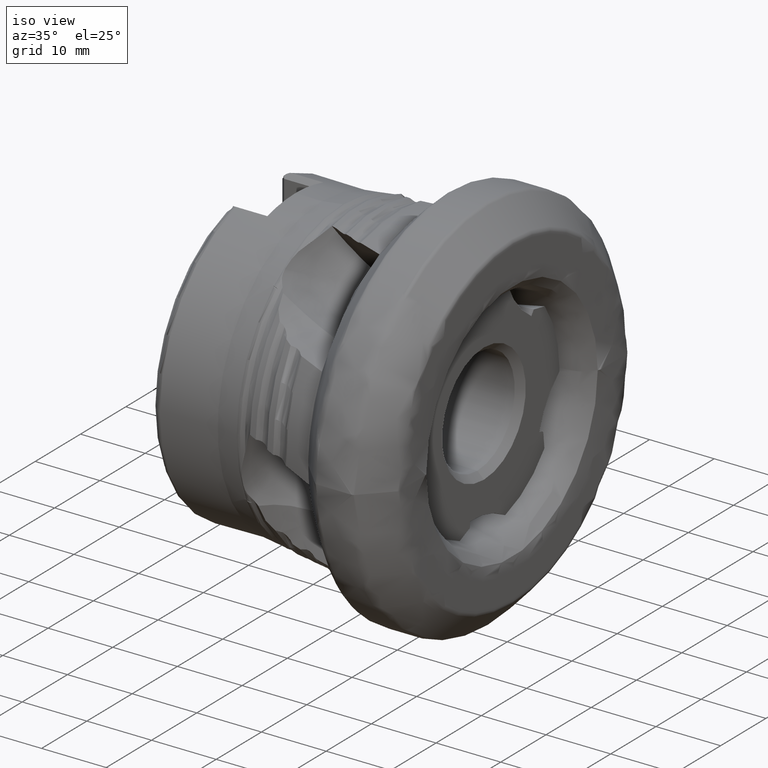
[diagram: clean part render]
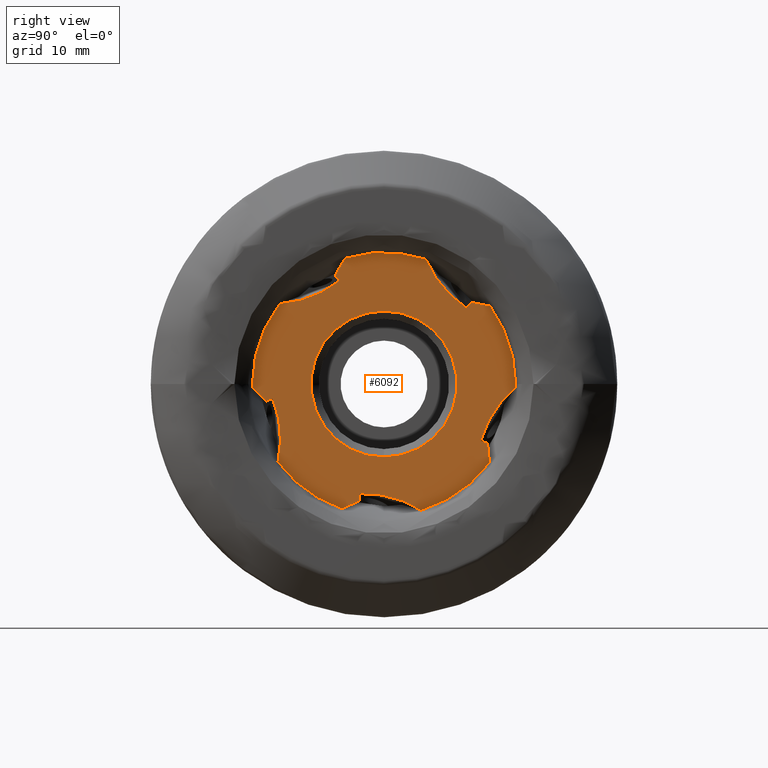
[diagram: tour spotlight — one face highlighted and labeled with its STEP entity id]
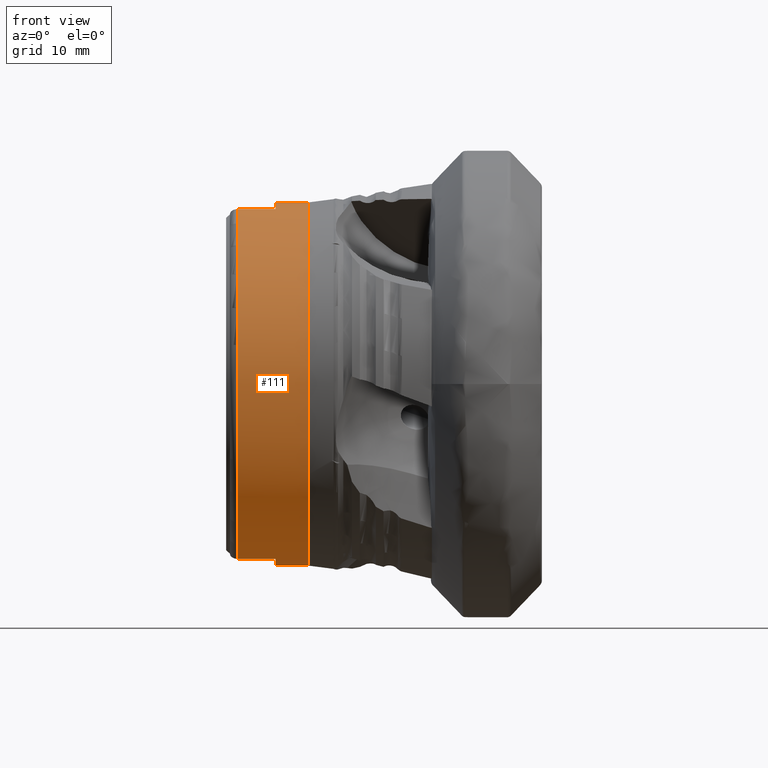
[diagram: tour spotlight — one face highlighted and labeled with its STEP entity id]
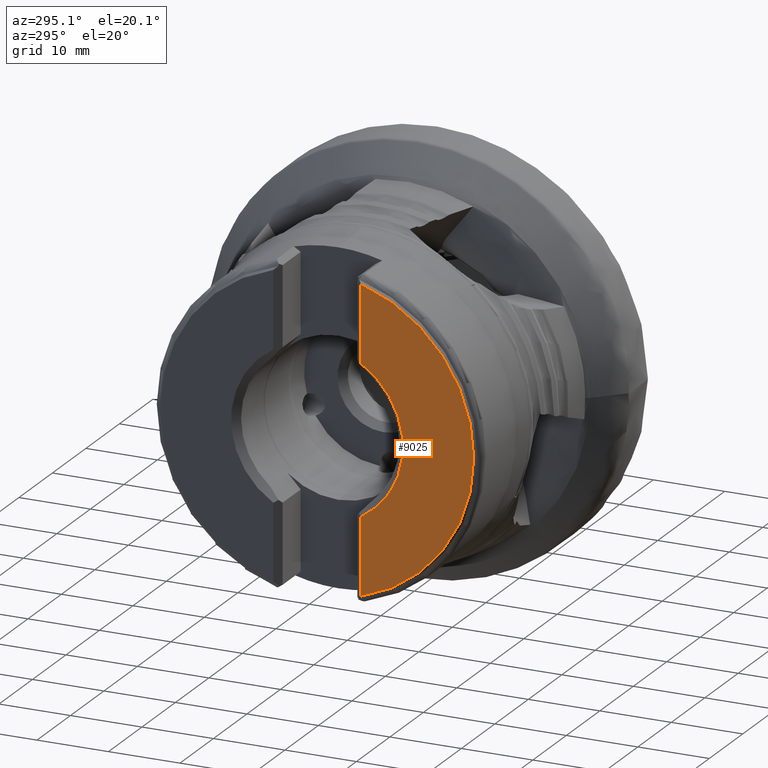
[diagram: tour spotlight — one face highlighted and labeled with its STEP entity id]
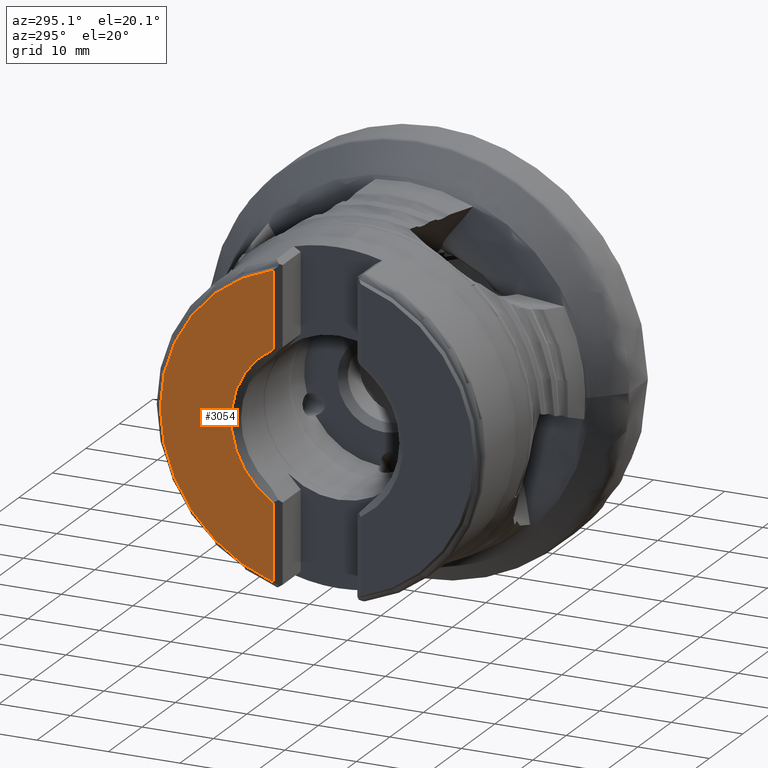
[diagram: tour spotlight — one face highlighted and labeled with its STEP entity id]
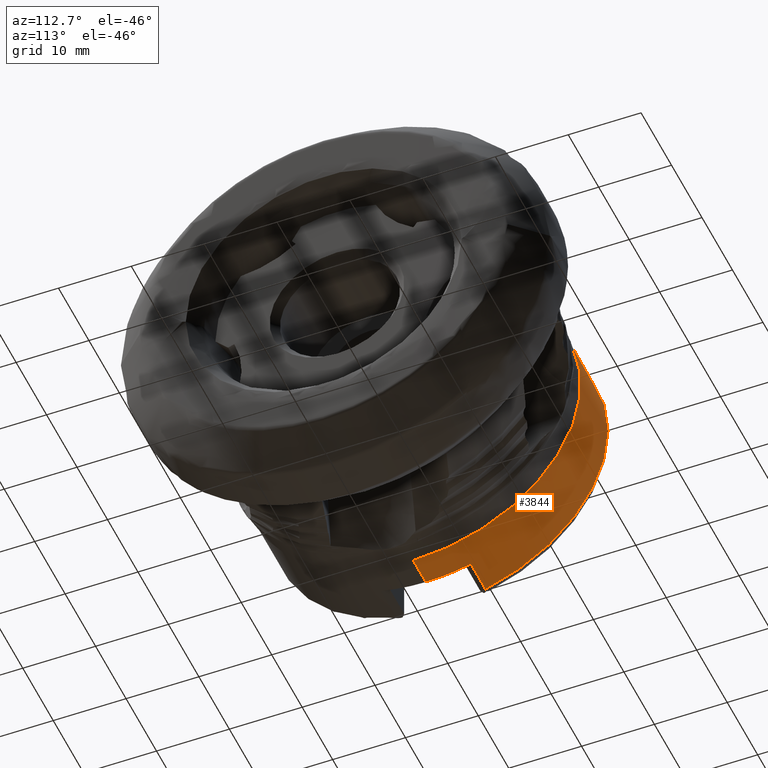
[diagram: tour spotlight — one face highlighted and labeled with its STEP entity id]
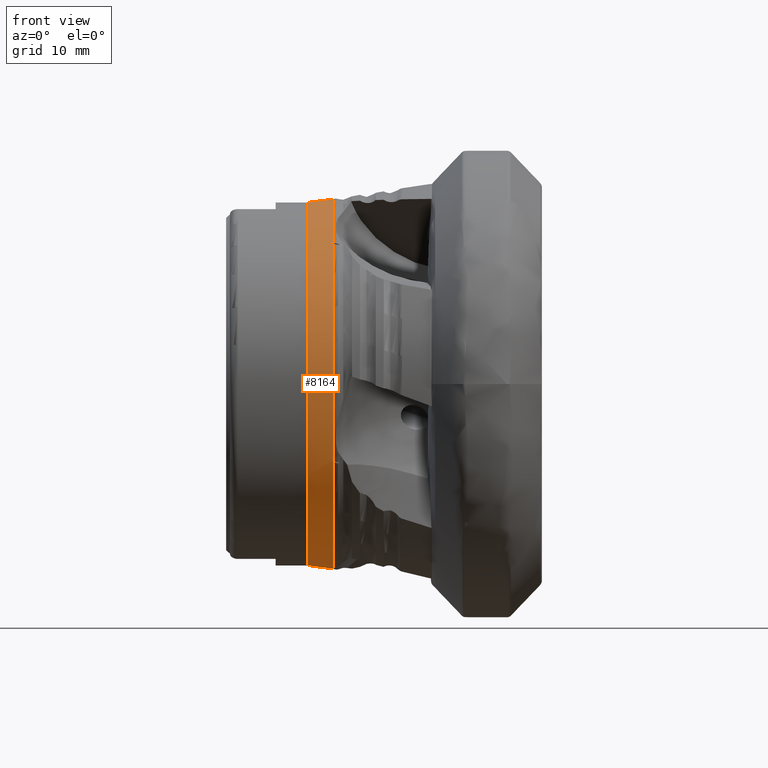
[diagram: tour spotlight — one face highlighted and labeled with its STEP entity id]
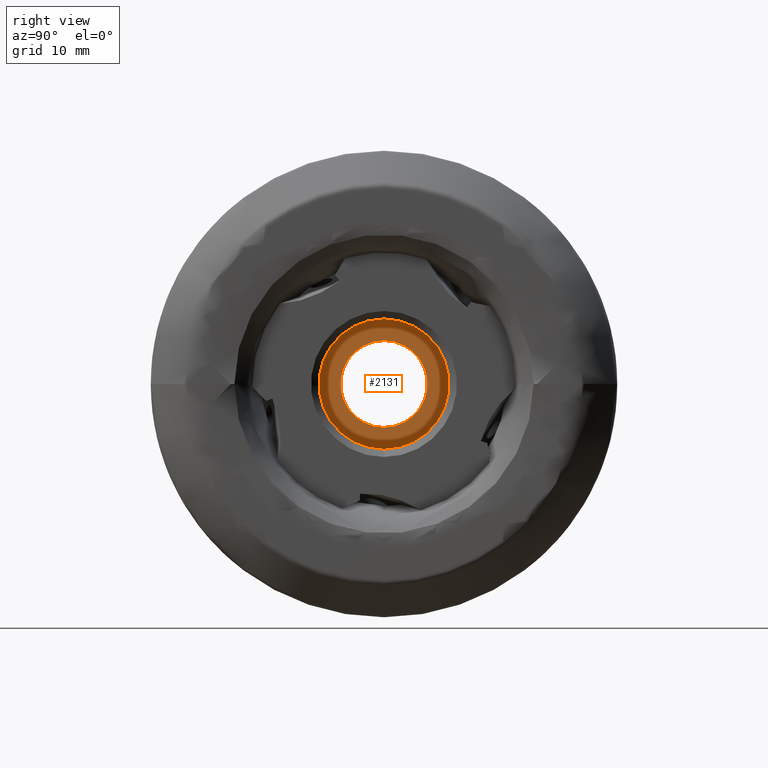
[diagram: tour spotlight — one face highlighted and labeled with its STEP entity id]
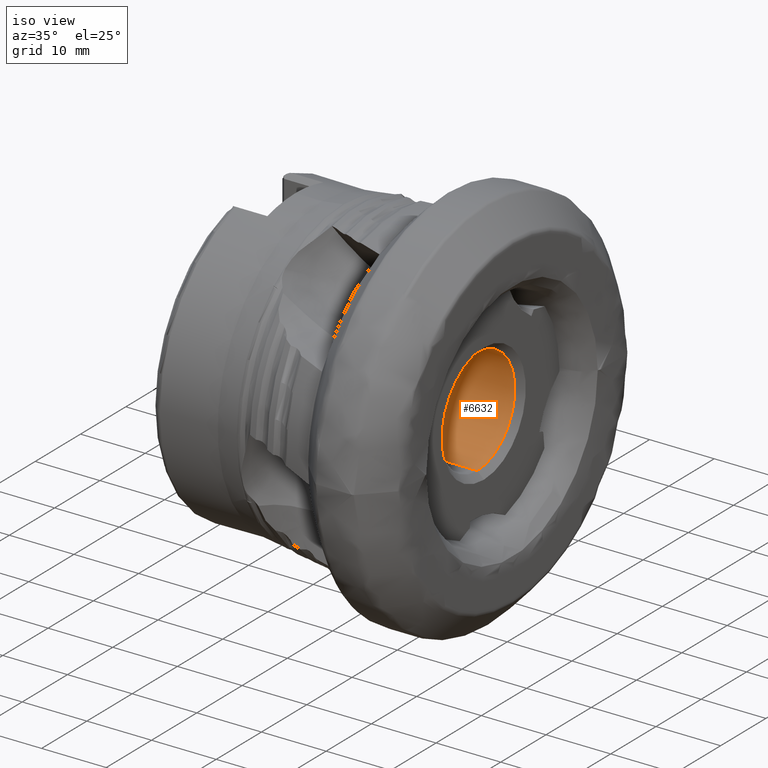
[diagram: tour spotlight — one face highlighted and labeled with its STEP entity id]
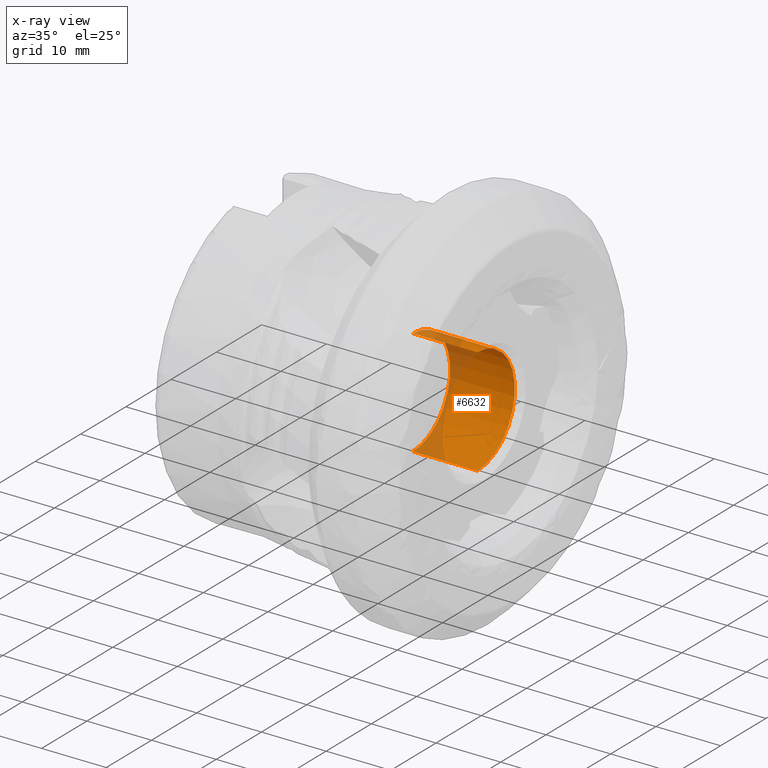
[diagram: x-ray of the same camera — body ghosted, this tour face saturated]
A machine part: a face-by-face anatomy tour. The part has 200 B-rep faces; the first image is the clean iso view, then the 8 largest visible faces are spotlighted one at a time (largest first), each with its STEP entity span.

Face 1 — right view, entity #6092. In plain terms, the highlighted planar face has unit normal (-1, 0, 0).
Definition (entity closure, byte-faithful):
#23 = CARTESIAN_POINT ( 'NONE',  ( -3.603847629320219500, -13.20117365793361400, 10.17871354887482700 ) ) ;
#57 =( BOUNDED_CURVE ( )  B_SPLINE_CURVE ( 3, ( #3706, #740, #5961, #23 ),
 .UNSPECIFIED., .F., .F. ) 
 B_SPLINE_CURVE_WITH_KNOTS ( ( 4, 4 ),
 ( 4.674356767830484000, 5.303031143446006900 ),
 .UNSPECIFIED. ) 
 CURVE ( )  GEOMETRIC_REPRESENTATION_ITEM ( )  RATIONAL_B_SPLINE_CURVE ( ( 1.000000000000000000, 0.9673343467877183500, 0.9673343467877183500, 1.000000000000000000 ) ) 
 REPRESENTATION_ITEM ( '' )  );
#124 = ORIENTED_EDGE ( 'NONE', *, *, #7868, .T. ) ;
#126 = VERTEX_POINT ( 'NONE', #3585 ) ;
#135 = VERTEX_POINT ( 'NONE', #627 ) ;
#241 = CARTESIAN_POINT ( 'NONE',  ( -3.603847629320219500, -3.079178627662221100, -13.88553706503180900 ) ) ;
#288 = CARTESIAN_POINT ( 'NONE',  ( -3.603847629320219500, 0.0000000000000000000, 0.0000000000000000000 ) ) ;
#301 = LINE ( 'NONE', #8842, #7704 ) ;
#356 = VERTEX_POINT ( 'NONE', #6983 ) ;
#368 = ORIENTED_EDGE ( 'NONE', *, *, #4416, .T. ) ;
#399 = LINE ( 'NONE', #3572, #6129 ) ;
#444 = CARTESIAN_POINT ( 'NONE',  ( -3.603847629320210600, -1.931042785923919600E-015, 0.0000000000000000000 ) ) ;
#626 = CARTESIAN_POINT ( 'NONE',  ( -3.603847629320210600, -1.931042785923919600E-015, 0.0000000000000000000 ) ) ;
#627 = CARTESIAN_POINT ( 'NONE',  ( -3.603847629320219500, -13.42314404921555100, -9.884148890570905600 ) ) ;
#704 = CARTESIAN_POINT ( 'NONE',  ( -3.603847629320214200, -6.199612795554506000, 13.77164654308549700 ) ) ;
#740 = CARTESIAN_POINT ( 'NONE',  ( -3.603847629320220400, -7.862771394274206600, 11.32564514017942500 ) ) ;
#875 = DIRECTION ( 'NONE',  ( 0.0000000000000000000, -0.5735764363510527100, -0.8191520442889871400 ) ) ;
#898 = VERTEX_POINT ( 'NONE', #6943 ) ;
#907 = CARTESIAN_POINT ( 'NONE',  ( -3.603847629320221300, -3.079178627662218800, -14.78553706503182900 ) ) ;
#1027 = EDGE_CURVE ( 'NONE', #8783, #5476, #8638, .T. ) ;
#1038 = CARTESIAN_POINT ( 'NONE',  ( -3.603847629320219500, -13.20117365793361400, 10.17871354887482700 ) ) ;
#1072 = DIRECTION ( 'NONE',  ( 0.0000000000000000000, -0.9144532970492326200, -0.4046914472975527400 ) ) ;
#1096 = CIRCLE ( 'NONE', #1190, 16.66964893021688000 ) ;
#1117 = CARTESIAN_POINT ( 'NONE',  ( -3.603847629320219500, -14.10127783121799200, -1.855651942640159200 ) ) ;
#1138 = CARTESIAN_POINT ( 'NONE',  ( -3.603847629320219500, 8.575731440277589700, -6.564870131852001300 ) ) ;
#1190 = AXIS2_PLACEMENT_3D ( 'NONE', #1514, #5980, #6772 ) ;
#1191 = CARTESIAN_POINT ( 'NONE',  ( -3.603847629320219500, -13.05418237155574700, -4.436410085874613600 ) ) ;
#1261 = AXIS2_PLACEMENT_3D ( 'NONE', #2866, #8123, #5073 ) ;
#1313 = ORIENTED_EDGE ( 'NONE', *, *, #4016, .T. ) ;
#1408 = CARTESIAN_POINT ( 'NONE',  ( -3.603847629320220400, 12.25441198329254500, -7.219339827793121800 ) ) ;
#1411 = DIRECTION ( 'NONE',  ( 0.0000000000000000000, 0.9396926207859094300, 0.3420201433256660500 ) ) ;
#1422 = DIRECTION ( 'NONE',  ( 0.0000000000000000000, 0.0000000000000000000, 1.000000000000000000 ) ) ;
#1514 = CARTESIAN_POINT ( 'NONE',  ( -3.603847629320210600, -1.931042785923919600E-015, 0.0000000000000000000 ) ) ;
#1516 = AXIS2_PLACEMENT_3D ( 'NONE', #7758, #2539, #2469 ) ;
#1559 =( BOUNDED_CURVE ( )  B_SPLINE_CURVE ( 3, ( #9189, #1857, #9311, #6951 ),
 .UNSPECIFIED., .F., .T. ) 
 B_SPLINE_CURVE_WITH_KNOTS ( ( 4, 4 ),
 ( 4.674356767830484000, 5.303031143446003300 ),
 .UNSPECIFIED. ) 
 CURVE ( )  GEOMETRIC_REPRESENTATION_ITEM ( )  RATIONAL_B_SPLINE_CURVE ( ( 1.000000000000000000, 0.9673343467877186800, 0.9673343467877186800, 1.000000000000000000 ) ) 
 REPRESENTATION_ITEM ( '' )  );
#1575 = VERTEX_POINT ( 'NONE', #3997 ) ;
#1682 = VECTOR ( 'NONE', #3748, 1000.000000000000200 ) ;
#1714 = VECTOR ( 'NONE', #875, 1000.000000000000000 ) ;
#1857 = CARTESIAN_POINT ( 'NONE',  ( -3.603847629320219100, 13.01816286694839100, -4.541018322963773300 ) ) ;
#1924 = EDGE_CURVE ( 'NONE', #4188, #3247, #301, .T. ) ;
#1989 = ORIENTED_EDGE ( 'NONE', *, *, #5733, .T. ) ;
#2023 = VERTEX_POINT ( 'NONE', #5234 ) ;
#2028 = LINE ( 'NONE', #6804, #4357 ) ;
#2204 = PLANE ( 'NONE',  #6308 ) ;
#2240 = LINE ( 'NONE', #1138, #5496 ) ;
#2412 = CARTESIAN_POINT ( 'NONE',  ( -3.603847629320212900, 16.66964893021687600, 0.0000000000000000000 ) ) ;
#2425 = EDGE_CURVE ( 'NONE', #9702, #2023, #4505, .T. ) ;
#2435 = ORIENTED_EDGE ( 'NONE', *, *, #8409, .T. ) ;
#2469 = DIRECTION ( 'NONE',  ( -1.300809845515323100E-016, 1.000000000000000000, 0.0000000000000000000 ) ) ;
#2481 = LINE ( 'NONE', #3212, #4100 ) ;
#2509 = CARTESIAN_POINT ( 'NONE',  ( -3.603847629320210600, -1.931042785923919600E-015, 0.0000000000000000000 ) ) ;
#2539 = DIRECTION ( 'NONE',  ( 1.000000000000000000, 1.209405225939784600E-016, -0.0000000000000000000 ) ) ;
#2567 = CARTESIAN_POINT ( 'NONE',  ( -3.603847629320209700, -16.66540738606921200, -0.3760214262919069900 ) ) ;
#2588 = EDGE_CURVE ( 'NONE', #6115, #4790, #1096, .T. ) ;
#2760 = DIRECTION ( 'NONE',  ( 0.0000000000000000000, 0.5877852522924687000, -0.8090169943749506700 ) ) ;
#2769 = CARTESIAN_POINT ( 'NONE',  ( -3.603847629320211100, -5.346560463220106000, -15.78896724519411000 ) ) ;
#2779 = DIRECTION ( 'NONE',  ( -1.300809845515323100E-016, 1.000000000000000000, 0.0000000000000000000 ) ) ;
#2866 = CARTESIAN_POINT ( 'NONE',  ( -3.603847629320210600, -1.931042785923919600E-015, 0.0000000000000000000 ) ) ;
#3106 = EDGE_CURVE ( 'NONE', #898, #6115, #5421, .T. ) ;
#3109 = EDGE_CURVE ( 'NONE', #4188, #898, #9090, .T. ) ;
#3132 = ORIENTED_EDGE ( 'NONE', *, *, #4191, .T. ) ;
#3187 = CARTESIAN_POINT ( 'NONE',  ( -3.603847629320219500, 0.0000000000000000000, 0.0000000000000000000 ) ) ;
#3212 = CARTESIAN_POINT ( 'NONE',  ( -3.603847629320219500, 12.39448456622863000, -0.5365304495966382000 ) ) ;
#3218 = DIRECTION ( 'NONE',  ( 0.0000000000000000000, 0.0000000000000000000, -1.000000000000000000 ) ) ;
#3224 = CARTESIAN_POINT ( 'NONE',  ( -3.603847629320219100, 8.148739888933487700, 11.12166579530201800 ) ) ;
#3247 = VERTEX_POINT ( 'NONE', #6379 ) ;
#3318 = LINE ( 'NONE', #5527, #7808 ) ;
#3336 = ORIENTED_EDGE ( 'NONE', *, *, #3109, .T. ) ;
#3340 = CARTESIAN_POINT ( 'NONE',  ( -3.603847629320219500, -13.42314404921555100, -9.884148890570905600 ) ) ;
#3405 = ORIENTED_EDGE ( 'NONE', *, *, #1924, .F. ) ;
#3524 = DIRECTION ( 'NONE',  ( 0.0000000000000000000, 0.9811977658473635100, -0.1930050369709102300 ) ) ;
#3572 = CARTESIAN_POINT ( 'NONE',  ( -3.603847629320219500, -6.179278906009690400, 13.80668457613335000 ) ) ;
#3585 = CARTESIAN_POINT ( 'NONE',  ( -3.603847629320219500, 16.66287154630135300, -0.4752970528291307600 ) ) ;
#3636 = LINE ( 'NONE', #8148, #1682 ) ;
#3706 = CARTESIAN_POINT ( 'NONE',  ( -3.603847629320219500, -5.670606068491271600, 13.04353124814802600 ) ) ;
#3748 = DIRECTION ( 'NONE',  ( 0.0000000000000000000, -0.9510565162951499800, 0.3090169943749582800 ) ) ;
#3843 =( BOUNDED_CURVE ( )  B_SPLINE_CURVE ( 3, ( #241, #8519, #5464, #5531 ),
 .UNSPECIFIED., .F., .T. ) 
 B_SPLINE_CURVE_WITH_KNOTS ( ( 4, 4 ),
 ( 4.674356767830484000, 5.303031143446002500 ),
 .UNSPECIFIED. ) 
 CURVE ( )  GEOMETRIC_REPRESENTATION_ITEM ( )  RATIONAL_B_SPLINE_CURVE ( ( 1.000000000000000000, 0.9673343467877187900, 0.9673343467877187900, 1.000000000000000000 ) ) 
 REPRESENTATION_ITEM ( '' )  );
#3918 = CARTESIAN_POINT ( 'NONE',  ( -3.603847629320210600, -1.931042785923919600E-015, 0.0000000000000000000 ) ) ;
#3976 = DIRECTION ( 'NONE',  ( 1.000000000000000000, 1.209405225939784600E-016, -0.0000000000000000000 ) ) ;
#3997 = CARTESIAN_POINT ( 'NONE',  ( -3.603847629320219500, 0.0000000000000000000, -9.250000000000005300 ) ) ;
#4016 = EDGE_CURVE ( 'NONE', #135, #8274, #8400, .T. ) ;
#4100 = VECTOR ( 'NONE', #6919, 1000.000000000000000 ) ;
#4179 = ORIENTED_EDGE ( 'NONE', *, *, #9413, .F. ) ;
#4188 = VERTEX_POINT ( 'NONE', #8937 ) ;
#4191 = EDGE_CURVE ( 'NONE', #9278, #126, #1559, .T. ) ;
#4256 = VECTOR ( 'NONE', #6776, 1000.000000000000000 ) ;
#4266 = EDGE_CURVE ( 'NONE', #9702, #8274, #3318, .T. ) ;
#4357 = VECTOR ( 'NONE', #5357, 1000.000000000000100 ) ;
#4416 = EDGE_CURVE ( 'NONE', #5593, #6081, #5436, .T. ) ;
#4484 = ORIENTED_EDGE ( 'NONE', *, *, #4266, .F. ) ;
#4494 = ORIENTED_EDGE ( 'NONE', *, *, #2425, .T. ) ;
#4505 = LINE ( 'NONE', #8345, #4256 ) ;
#4518 = CARTESIAN_POINT ( 'NONE',  ( -3.603847629320219500, 13.36402213952420600, -9.963940370705326900 ) ) ;
#4595 = FACE_BOUND ( 'NONE', #6228, .T. ) ;
#4673 = CARTESIAN_POINT ( 'NONE',  ( -3.603847629320219500, 8.316321590490595400, 6.508553991342737700 ) ) ;
#4689 = CARTESIAN_POINT ( 'NONE',  ( -3.603847629320217700, -14.94700118992532500, -2.163470071633263500 ) ) ;
#4710 = EDGE_CURVE ( 'NONE', #5488, #4790, #399, .T. ) ;
#4749 = DIRECTION ( 'NONE',  ( 1.000000000000000000, 1.209405225939784600E-016, -0.0000000000000000000 ) ) ;
#4790 = VERTEX_POINT ( 'NONE', #6054 ) ;
#4811 = EDGE_CURVE ( 'NONE', #5956, #8783, #57, .T. ) ;
#4917 = DIRECTION ( 'NONE',  ( 0.0000000000000000000, 0.0000000000000000000, -1.000000000000000000 ) ) ;
#4947 = AXIS2_PLACEMENT_3D ( 'NONE', #444, #5676, #2779 ) ;
#5051 = VERTEX_POINT ( 'NONE', #2567 ) ;
#5073 = DIRECTION ( 'NONE',  ( -1.300809845515323100E-016, 1.000000000000000000, 0.0000000000000000000 ) ) ;
#5151 = ORIENTED_EDGE ( 'NONE', *, *, #4811, .T. ) ;
#5234 = CARTESIAN_POINT ( 'NONE',  ( -3.603847629320219500, -3.079178627662221100, -13.88553706503180900 ) ) ;
#5284 = LINE ( 'NONE', #5880, #7882 ) ;
#5357 = DIRECTION ( 'NONE',  ( 0.0000000000000000000, -0.6930470144420863800, 0.7208923884831288700 ) ) ;
#5421 =( BOUNDED_CURVE ( )  B_SPLINE_CURVE ( 3, ( #7646, #3224, #6162, #7737 ),
 .UNSPECIFIED., .F., .F. ) 
 B_SPLINE_CURVE_WITH_KNOTS ( ( 4, 4 ),
 ( 4.674356767830484000, 5.303031143445988200 ),
 .UNSPECIFIED. ) 
 CURVE ( )  GEOMETRIC_REPRESENTATION_ITEM ( )  RATIONAL_B_SPLINE_CURVE ( ( 1.000000000000000000, 0.9673343467877201200, 0.9673343467877201200, 1.000000000000000000 ) ) 
 REPRESENTATION_ITEM ( '' )  );
#5436 = CIRCLE ( 'NONE', #5784, 16.66964893021688000 ) ;
#5464 = CARTESIAN_POINT ( 'NONE',  ( -3.603847629320219500, 2.383684829795774500, -14.51088628771241300 ) ) ;
#5476 = VERTEX_POINT ( 'NONE', #6487 ) ;
#5488 = VERTEX_POINT ( 'NONE', #704 ) ;
#5493 = AXIS2_PLACEMENT_3D ( 'NONE', #3187, #8426, #3218 ) ;
#5496 = VECTOR ( 'NONE', #2760, 1000.000000000000100 ) ;
#5527 = CARTESIAN_POINT ( 'NONE',  ( -3.603847629320219500, 19.69458546111797400, -4.707004263804150500 ) ) ;
#5531 = CARTESIAN_POINT ( 'NONE',  ( -3.603847629320219500, 4.697076123625021400, -15.99420743099946800 ) ) ;
#5593 = VERTEX_POINT ( 'NONE', #7490 ) ;
#5594 = ORIENTED_EDGE ( 'NONE', *, *, #7823, .T. ) ;
#5636 = CIRCLE ( 'NONE', #7513, 16.66964893021688000 ) ;
#5659 = ORIENTED_EDGE ( 'NONE', *, *, #1027, .T. ) ;
#5667 =( BOUNDED_CURVE ( )  B_SPLINE_CURVE ( 3, ( #1117, #1191, #9379, #3340 ),
 .UNSPECIFIED., .F., .T. ) 
 B_SPLINE_CURVE_WITH_KNOTS ( ( 4, 4 ),
 ( 4.674356767830484000, 5.303031143445995400 ),
 .UNSPECIFIED. ) 
 CURVE ( )  GEOMETRIC_REPRESENTATION_ITEM ( )  RATIONAL_B_SPLINE_CURVE ( ( 1.000000000000000000, 0.9673343467877195700, 0.9673343467877195700, 1.000000000000000000 ) ) 
 REPRESENTATION_ITEM ( '' )  );
#5676 = DIRECTION ( 'NONE',  ( 1.000000000000000000, 1.209405225939784600E-016, -0.0000000000000000000 ) ) ;
#5733 = EDGE_CURVE ( 'NONE', #5476, #5051, #9654, .T. ) ;
#5782 = EDGE_CURVE ( 'NONE', #7532, #3247, #7681, .T. ) ;
#5784 = AXIS2_PLACEMENT_3D ( 'NONE', #626, #7346, #8115 ) ;
#5828 = VERTEX_POINT ( 'NONE', #8449 ) ;
#5871 = ORIENTED_EDGE ( 'NONE', *, *, #4710, .F. ) ;
#5880 = CARTESIAN_POINT ( 'NONE',  ( -3.603847629320219500, 14.49820473943661300, 8.553708428493074200 ) ) ;
#5956 = VERTEX_POINT ( 'NONE', #7349 ) ;
#5961 = CARTESIAN_POINT ( 'NONE',  ( -3.603847629320220400, -10.45772649414893800, 10.33845882113452900 ) ) ;
#5980 = DIRECTION ( 'NONE',  ( 1.000000000000000000, 1.209405225939784600E-016, -0.0000000000000000000 ) ) ;
#5999 = ORIENTED_EDGE ( 'NONE', *, *, #7178, .T. ) ;
#6054 = CARTESIAN_POINT ( 'NONE',  ( -3.603847629320209700, -4.955063819455667800, 15.91617221576225000 ) ) ;
#6081 = VERTEX_POINT ( 'NONE', #4518 ) ;
#6092 = ADVANCED_FACE ( 'NONE', ( #4595, #8497 ), #2204, .F. ) ;
#6115 = VERTEX_POINT ( 'NONE', #7388 ) ;
#6129 = VECTOR ( 'NONE', #8852, 1000.000000000000100 ) ;
#6162 = CARTESIAN_POINT ( 'NONE',  ( -3.603847629320219100, 6.370502143933663300, 13.25384761708287600 ) ) ;
#6228 = EDGE_LOOP ( 'NONE', ( #4179, #7384 ) ) ;
#6255 = DIRECTION ( 'NONE',  ( 1.000000000000000000, -0.0000000000000000000, -0.0000000000000000000 ) ) ;
#6308 = AXIS2_PLACEMENT_3D ( 'NONE', #8218, #9023, #1422 ) ;
#6379 = CARTESIAN_POINT ( 'NONE',  ( -3.603847629320211100, 13.43582549952335700, 9.866903698883389100 ) ) ;
#6487 = CARTESIAN_POINT ( 'NONE',  ( -3.603847629320208900, -16.66964893021688400, 2.041443220529976200E-015 ) ) ;
#6772 = DIRECTION ( 'NONE',  ( -1.300809845515323100E-016, 1.000000000000000000, 0.0000000000000000000 ) ) ;
#6776 = DIRECTION ( 'NONE',  ( 0.0000000000000000000, 5.278916510769800200E-017, 1.000000000000000000 ) ) ;
#6804 = CARTESIAN_POINT ( 'NONE',  ( -3.603847629320219500, -0.3895881988865493300, -17.30577355546453700 ) ) ;
#6919 = DIRECTION ( 'NONE',  ( 0.0000000000000000000, 0.1023028286908281700, -0.9947533016993988000 ) ) ;
#6943 = CARTESIAN_POINT ( 'NONE',  ( -3.603847629320219500, 10.48673233416186800, 9.608221768728487400 ) ) ;
#6951 = CARTESIAN_POINT ( 'NONE',  ( -3.603847629320219500, 16.66287154630135300, -0.4752970528291307600 ) ) ;
#6954 = EDGE_CURVE ( 'NONE', #8370, #5051, #2028, .T. ) ;
#6983 = CARTESIAN_POINT ( 'NONE',  ( -3.603847629320219500, 1.132798289211302300E-015, 9.250000000000005300 ) ) ;
#7154 = AXIS2_PLACEMENT_3D ( 'NONE', #2509, #4749, #7662 ) ;
#7178 = EDGE_CURVE ( 'NONE', #126, #7532, #5636, .T. ) ;
#7258 = ORIENTED_EDGE ( 'NONE', *, *, #3106, .T. ) ;
#7272 = ORIENTED_EDGE ( 'NONE', *, *, #5782, .T. ) ;
#7299 = EDGE_CURVE ( 'NONE', #8367, #135, #5667, .T. ) ;
#7346 = DIRECTION ( 'NONE',  ( 1.000000000000000000, 1.209405225939784600E-016, -0.0000000000000000000 ) ) ;
#7349 = CARTESIAN_POINT ( 'NONE',  ( -3.603847629320219500, -5.670606068491271600, 13.04353124814802600 ) ) ;
#7379 = ORIENTED_EDGE ( 'NONE', *, *, #8465, .T. ) ;
#7384 = ORIENTED_EDGE ( 'NONE', *, *, #8140, .F. ) ;
#7388 = CARTESIAN_POINT ( 'NONE',  ( -3.603847629320219500, 5.326280991683840500, 15.79581989814361800 ) ) ;
#7490 = CARTESIAN_POINT ( 'NONE',  ( -3.603847629320219500, 4.697076123625021400, -15.99420743099946800 ) ) ;
#7513 = AXIS2_PLACEMENT_3D ( 'NONE', #3918, #3976, #9231 ) ;
#7532 = VERTEX_POINT ( 'NONE', #2412 ) ;
#7646 = CARTESIAN_POINT ( 'NONE',  ( -3.603847629320219500, 10.48673233416186800, 9.608221768728487400 ) ) ;
#7660 = EDGE_CURVE ( 'NONE', #5828, #6081, #2481, .T. ) ;
#7662 = DIRECTION ( 'NONE',  ( -1.300809845515323100E-016, 1.000000000000000000, 0.0000000000000000000 ) ) ;
#7681 = CIRCLE ( 'NONE', #7154, 16.66964893021688000 ) ;
#7704 = VECTOR ( 'NONE', #3524, 1000.000000000000000 ) ;
#7737 = CARTESIAN_POINT ( 'NONE',  ( -3.603847629320219500, 5.326280991683840500, 15.79581989814361800 ) ) ;
#7758 = CARTESIAN_POINT ( 'NONE',  ( -3.603847629320210600, -1.931042785923919600E-015, 0.0000000000000000000 ) ) ;
#7808 = VECTOR ( 'NONE', #1072, 999.9999999999998900 ) ;
#7823 = EDGE_CURVE ( 'NONE', #5828, #9278, #3636, .T. ) ;
#7868 = EDGE_CURVE ( 'NONE', #8370, #8367, #5284, .T. ) ;
#7882 = VECTOR ( 'NONE', #1411, 1000.000000000000000 ) ;
#8115 = DIRECTION ( 'NONE',  ( -1.300809845515323100E-016, 1.000000000000000000, 0.0000000000000000000 ) ) ;
#8123 = DIRECTION ( 'NONE',  ( 1.000000000000000000, 1.209405225939784600E-016, -0.0000000000000000000 ) ) ;
#8140 = EDGE_CURVE ( 'NONE', #356, #1575, #9276, .T. ) ;
#8148 = CARTESIAN_POINT ( 'NONE',  ( -3.603847629320219500, 14.97823287355328700, -8.104362884049518100 ) ) ;
#8218 = CARTESIAN_POINT ( 'NONE',  ( -3.603847629320219500, 17.61149999999999900, 0.0000000000000000000 ) ) ;
#8253 = EDGE_LOOP ( 'NONE', ( #7258, #8486, #5871, #7379, #5151, #5659, #1989, #8336, #124, #9059, #1313, #4484, #4494, #2435, #368, #8816, #5594, #3132, #5999, #7272, #3405, #3336 ) ) ;
#8274 = VERTEX_POINT ( 'NONE', #2769 ) ;
#8336 = ORIENTED_EDGE ( 'NONE', *, *, #6954, .F. ) ;
#8345 = CARTESIAN_POINT ( 'NONE',  ( -3.603847629320219500, -3.079178627662222800, 1.092243650265979200E-015 ) ) ;
#8367 = VERTEX_POINT ( 'NONE', #8448 ) ;
#8370 = VERTEX_POINT ( 'NONE', #4689 ) ;
#8400 = CIRCLE ( 'NONE', #1261, 16.66964893021688000 ) ;
#8409 = EDGE_CURVE ( 'NONE', #2023, #5593, #3843, .T. ) ;
#8426 = DIRECTION ( 'NONE',  ( 1.000000000000000000, -0.0000000000000000000, -0.0000000000000000000 ) ) ;
#8448 = CARTESIAN_POINT ( 'NONE',  ( -3.603847629320219500, -14.10127783121799200, -1.855651942640159200 ) ) ;
#8449 = CARTESIAN_POINT ( 'NONE',  ( -3.603847629320217700, 13.11036284795820200, -7.497455122730591400 ) ) ;
#8465 = EDGE_CURVE ( 'NONE', #5488, #5956, #2240, .T. ) ;
#8486 = ORIENTED_EDGE ( 'NONE', *, *, #2588, .T. ) ;
#8497 = FACE_OUTER_BOUND ( 'NONE', #8253, .T. ) ;
#8519 = CARTESIAN_POINT ( 'NONE',  ( -3.603847629320219500, -0.2959315052422912800, -13.78426045836669900 ) ) ;
#8638 = CIRCLE ( 'NONE', #4947, 16.66964893021688000 ) ;
#8783 = VERTEX_POINT ( 'NONE', #1038 ) ;
#8816 = ORIENTED_EDGE ( 'NONE', *, *, #7660, .F. ) ;
#8842 = CARTESIAN_POINT ( 'NONE',  ( -3.603847629320219500, 19.32450803261168600, 8.708579220813319900 ) ) ;
#8852 = DIRECTION ( 'NONE',  ( 0.0000000000000000000, 0.5019365934246378100, 0.8649044202576777800 ) ) ;
#8937 = CARTESIAN_POINT ( 'NONE',  ( -3.603847629320217700, 11.00295112687782900, 10.34545860858859400 ) ) ;
#9023 = DIRECTION ( 'NONE',  ( -1.000000000000000000, 0.0000000000000000000, 0.0000000000000000000 ) ) ;
#9059 = ORIENTED_EDGE ( 'NONE', *, *, #7299, .T. ) ;
#9090 = LINE ( 'NONE', #4673, #1714 ) ;
#9148 = CIRCLE ( 'NONE', #5493, 9.250000000000005300 ) ;
#9189 = CARTESIAN_POINT ( 'NONE',  ( -3.603847629320220400, 12.25441198329254500, -7.219339827793121800 ) ) ;
#9231 = DIRECTION ( 'NONE',  ( -1.300809845515323100E-016, 1.000000000000000000, 0.0000000000000000000 ) ) ;
#9276 = CIRCLE ( 'NONE', #9642, 9.250000000000005300 ) ;
#9278 = VERTEX_POINT ( 'NONE', #1408 ) ;
#9311 = CARTESIAN_POINT ( 'NONE',  ( -3.603847629320219100, 14.53727208278751000, -2.217091476174513500 ) ) ;
#9379 = CARTESIAN_POINT ( 'NONE',  ( -3.603847629320219500, -12.82050453849683400, -7.202946452744186000 ) ) ;
#9413 = EDGE_CURVE ( 'NONE', #1575, #356, #9148, .T. ) ;
#9642 = AXIS2_PLACEMENT_3D ( 'NONE', #288, #6255, #4917 ) ;
#9654 = CIRCLE ( 'NONE', #1516, 16.66964893021688000 ) ;
#9702 = VERTEX_POINT ( 'NONE', #907 ) ;

Face 2 — front view, entity #111. In plain terms, the highlighted cylindrical surface (partial cylindrical patch) has radius 23 mm, axis along (1, -0, -0).
Definition (entity closure, byte-faithful):
#8 = VECTOR ( 'NONE', #7657, 1000.000000000000000 ) ;
#88 = ORIENTED_EDGE ( 'NONE', *, *, #8633, .T. ) ;
#111 = ADVANCED_FACE ( 'NONE', ( #889 ), #3335, .T. ) ;
#180 = DIRECTION ( 'NONE',  ( 1.000000000000000000, -0.0000000000000000000, -0.0000000000000000000 ) ) ;
#277 = DIRECTION ( 'NONE',  ( 0.0000000000000000000, 0.0000000000000000000, -1.000000000000000000 ) ) ;
#365 = VECTOR ( 'NONE', #180, 1000.000000000000000 ) ;
#537 = CARTESIAN_POINT ( 'NONE',  ( -32.77900000000001800, 2.816687638038911600E-015, 22.99999999999999300 ) ) ;
#648 = VECTOR ( 'NONE', #8255, 1000.000000000000000 ) ;
#847 = ORIENTED_EDGE ( 'NONE', *, *, #8063, .F. ) ;
#889 = FACE_OUTER_BOUND ( 'NONE', #2335, .T. ) ;
#952 = LINE ( 'NONE', #9125, #365 ) ;
#965 = VERTEX_POINT ( 'NONE', #2679 ) ;
#1048 = CARTESIAN_POINT ( 'NONE',  ( 0.0000000000000000000, 0.0000000000000000000, 0.0000000000000000000 ) ) ;
#1083 = VECTOR ( 'NONE', #7932, 1000.000000000000000 ) ;
#1599 = EDGE_CURVE ( 'NONE', #5360, #7796, #2991, .T. ) ;
#1624 = AXIS2_PLACEMENT_3D ( 'NONE', #5448, #2544, #7706 ) ;
#1780 = CARTESIAN_POINT ( 'NONE',  ( -28.67600000000000900, 0.0000000000000000000, -22.99999999999999600 ) ) ;
#2335 = EDGE_LOOP ( 'NONE', ( #3967, #8480, #9342, #3996, #3180, #847, #88, #2387 ) ) ;
#2387 = ORIENTED_EDGE ( 'NONE', *, *, #7083, .F. ) ;
#2464 = EDGE_CURVE ( 'NONE', #6065, #5360, #7093, .T. ) ;
#2522 = DIRECTION ( 'NONE',  ( 1.000000000000000000, -0.0000000000000000000, -0.0000000000000000000 ) ) ;
#2544 = DIRECTION ( 'NONE',  ( -1.000000000000000000, -3.980245069162846600E-015, -0.0000000000000000000 ) ) ;
#2679 = CARTESIAN_POINT ( 'NONE',  ( -28.67600000000000900, 2.842527685500920400E-015, 22.99999999999999600 ) ) ;
#2723 = CIRCLE ( 'NONE', #8029, 22.99999999999999600 ) ;
#2883 = AXIS2_PLACEMENT_3D ( 'NONE', #1048, #7794, #9288 ) ;
#2894 = AXIS2_PLACEMENT_3D ( 'NONE', #7087, #3271, #277 ) ;
#2970 = DIRECTION ( 'NONE',  ( -3.921983510904086700E-015, 1.000000000000000000, -8.881784197001252300E-016 ) ) ;
#2991 = CIRCLE ( 'NONE', #2894, 22.99999999999999300 ) ;
#3180 = ORIENTED_EDGE ( 'NONE', *, *, #7559, .T. ) ;
#3271 = DIRECTION ( 'NONE',  ( 1.000000000000000000, -0.0000000000000000000, -0.0000000000000000000 ) ) ;
#3274 = EDGE_CURVE ( 'NONE', #8264, #965, #6841, .T. ) ;
#3335 = CYLINDRICAL_SURFACE ( 'NONE', #2883, 22.99999999999999300 ) ;
#3420 = EDGE_CURVE ( 'NONE', #6065, #8264, #4841, .T. ) ;
#3654 = CARTESIAN_POINT ( 'NONE',  ( -37.60400000000000600, -6.178756816328316000, -22.15452468920685200 ) ) ;
#3967 = ORIENTED_EDGE ( 'NONE', *, *, #3274, .F. ) ;
#3996 = ORIENTED_EDGE ( 'NONE', *, *, #1599, .T. ) ;
#4454 = LINE ( 'NONE', #7752, #8 ) ;
#4652 = CARTESIAN_POINT ( 'NONE',  ( -32.77899999999998900, -6.178756816328315100, -22.15452468920685500 ) ) ;
#4714 = CARTESIAN_POINT ( 'NONE',  ( -37.60400000000000600, -6.178756816328314200, 22.15452468920685200 ) ) ;
#4720 = VERTEX_POINT ( 'NONE', #5111 ) ;
#4841 = CIRCLE ( 'NONE', #5698, 22.99999999999999300 ) ;
#5111 = CARTESIAN_POINT ( 'NONE',  ( -32.77900000000001800, 0.0000000000000000000, -22.99999999999999300 ) ) ;
#5204 = CARTESIAN_POINT ( 'NONE',  ( -32.77899999999998900, -6.178756816328315100, 22.15452468920685200 ) ) ;
#5333 = CARTESIAN_POINT ( 'NONE',  ( -1.002620410863798300E-029, -6.178756816328300000, 22.15452468920685900 ) ) ;
#5360 = VERTEX_POINT ( 'NONE', #4714 ) ;
#5448 = CARTESIAN_POINT ( 'NONE',  ( -32.77900000000001800, 0.0000000000000000000, 0.0000000000000000000 ) ) ;
#5605 = CARTESIAN_POINT ( 'NONE',  ( 0.0000000000000000000, 2.816687638038911600E-015, 22.99999999999999300 ) ) ;
#5698 = AXIS2_PLACEMENT_3D ( 'NONE', #5870, #9612, #2970 ) ;
#5870 = CARTESIAN_POINT ( 'NONE',  ( -32.77900000000001800, 0.0000000000000000000, 0.0000000000000000000 ) ) ;
#6065 = VERTEX_POINT ( 'NONE', #5204 ) ;
#6841 = LINE ( 'NONE', #5605, #1083 ) ;
#7083 = EDGE_CURVE ( 'NONE', #965, #8076, #2723, .T. ) ;
#7087 = CARTESIAN_POINT ( 'NONE',  ( -37.60400000000000600, 0.0000000000000000000, 0.0000000000000000000 ) ) ;
#7093 = LINE ( 'NONE', #5333, #648 ) ;
#7151 = CIRCLE ( 'NONE', #1624, 22.99999999999999300 ) ;
#7559 = EDGE_CURVE ( 'NONE', #7796, #8338, #952, .T. ) ;
#7657 = DIRECTION ( 'NONE',  ( 1.000000000000000000, -0.0000000000000000000, -0.0000000000000000000 ) ) ;
#7706 = DIRECTION ( 'NONE',  ( -3.921983510904086700E-015, 1.000000000000000000, 0.0000000000000000000 ) ) ;
#7752 = CARTESIAN_POINT ( 'NONE',  ( 0.0000000000000000000, 0.0000000000000000000, -22.99999999999999300 ) ) ;
#7794 = DIRECTION ( 'NONE',  ( 1.000000000000000000, -0.0000000000000000000, -0.0000000000000000000 ) ) ;
#7796 = VERTEX_POINT ( 'NONE', #3654 ) ;
#7932 = DIRECTION ( 'NONE',  ( 1.000000000000000000, -0.0000000000000000000, -0.0000000000000000000 ) ) ;
#8029 = AXIS2_PLACEMENT_3D ( 'NONE', #8403, #2522, #9139 ) ;
#8063 = EDGE_CURVE ( 'NONE', #4720, #8338, #7151, .T. ) ;
#8076 = VERTEX_POINT ( 'NONE', #1780 ) ;
#8255 = DIRECTION ( 'NONE',  ( -1.000000000000000000, 0.0000000000000000000, 0.0000000000000000000 ) ) ;
#8264 = VERTEX_POINT ( 'NONE', #537 ) ;
#8338 = VERTEX_POINT ( 'NONE', #4652 ) ;
#8403 = CARTESIAN_POINT ( 'NONE',  ( -28.67600000000000900, 0.0000000000000000000, 0.0000000000000000000 ) ) ;
#8480 = ORIENTED_EDGE ( 'NONE', *, *, #3420, .F. ) ;
#8633 = EDGE_CURVE ( 'NONE', #4720, #8076, #4454, .T. ) ;
#9125 = CARTESIAN_POINT ( 'NONE',  ( -7.846594519803636900E-030, -6.178756816328299100, -22.15452468920685900 ) ) ;
#9139 = DIRECTION ( 'NONE',  ( 0.0000000000000000000, 0.0000000000000000000, -1.000000000000000000 ) ) ;
#9288 = DIRECTION ( 'NONE',  ( 0.0000000000000000000, 0.0000000000000000000, -1.000000000000000000 ) ) ;
#9342 = ORIENTED_EDGE ( 'NONE', *, *, #2464, .T. ) ;
#9612 = DIRECTION ( 'NONE',  ( -1.000000000000000000, -3.980245069162846600E-015, -0.0000000000000000000 ) ) ;

Face 3 — auxiliary view, entity #9025. In plain terms, the highlighted planar face has unit normal (1, 0, -0).
Definition (entity closure, byte-faithful):
#152 = ORIENTED_EDGE ( 'NONE', *, *, #8841, .F. ) ;
#209 = CARTESIAN_POINT ( 'NONE',  ( -39.05400000000000900, -6.130000000000023900, -10.34522716038656000 ) ) ;
#447 = EDGE_LOOP ( 'NONE', ( #152, #5269, #5414, #7065 ) ) ;
#465 = CIRCLE ( 'NONE', #4557, 12.02499999999999900 ) ;
#585 = FACE_OUTER_BOUND ( 'NONE', #447, .T. ) ;
#811 = AXIS2_PLACEMENT_3D ( 'NONE', #3552, #8829, #2852 ) ;
#1063 = CARTESIAN_POINT ( 'NONE',  ( -39.05400000000000900, -6.873136889671223300E-015, 0.0000000000000000000 ) ) ;
#1588 = LINE ( 'NONE', #2981, #4615 ) ;
#1711 = CARTESIAN_POINT ( 'NONE',  ( -39.05400000000000900, -6.130000000000023000, 21.04779779708103100 ) ) ;
#2163 = VECTOR ( 'NONE', #2828, 1000.000000000000000 ) ;
#2620 = LINE ( 'NONE', #9541, #2163 ) ;
#2828 = DIRECTION ( 'NONE',  ( 0.0000000000000000000, 0.0000000000000000000, 1.000000000000000000 ) ) ;
#2852 = DIRECTION ( 'NONE',  ( 0.0000000000000000000, 0.0000000000000000000, -1.000000000000000000 ) ) ;
#2981 = CARTESIAN_POINT ( 'NONE',  ( -39.05400000000000900, -6.130000000000023900, -30.00000000000000400 ) ) ;
#3017 = EDGE_CURVE ( 'NONE', #4212, #3755, #1588, .T. ) ;
#3037 = DIRECTION ( 'NONE',  ( 0.0000000000000000000, 0.0000000000000000000, 1.000000000000000000 ) ) ;
#3038 = VERTEX_POINT ( 'NONE', #3720 ) ;
#3256 = DIRECTION ( 'NONE',  ( -0.0000000000000000000, 0.0000000000000000000, -1.000000000000000000 ) ) ;
#3351 = CARTESIAN_POINT ( 'NONE',  ( -39.05400000000000900, 0.0000000000000000000, 0.0000000000000000000 ) ) ;
#3552 = CARTESIAN_POINT ( 'NONE',  ( -39.05400000000000900, 0.0000000000000000000, 0.0000000000000000000 ) ) ;
#3720 = CARTESIAN_POINT ( 'NONE',  ( -39.05400000000000900, -6.130000000000023900, -21.04779779708103500 ) ) ;
#3755 = VERTEX_POINT ( 'NONE', #1711 ) ;
#3933 = EDGE_CURVE ( 'NONE', #3038, #8340, #2620, .T. ) ;
#4212 = VERTEX_POINT ( 'NONE', #8540 ) ;
#4557 = AXIS2_PLACEMENT_3D ( 'NONE', #3351, #9332, #9277 ) ;
#4615 = VECTOR ( 'NONE', #3037, 1000.000000000000000 ) ;
#5047 = AXIS2_PLACEMENT_3D ( 'NONE', #1063, #6287, #3256 ) ;
#5269 = ORIENTED_EDGE ( 'NONE', *, *, #3933, .F. ) ;
#5414 = ORIENTED_EDGE ( 'NONE', *, *, #6893, .T. ) ;
#6287 = DIRECTION ( 'NONE',  ( 1.000000000000000000, 0.0000000000000000000, -0.0000000000000000000 ) ) ;
#6893 = EDGE_CURVE ( 'NONE', #3038, #3755, #6941, .T. ) ;
#6941 = CIRCLE ( 'NONE', #811, 21.92228756555322300 ) ;
#7065 = ORIENTED_EDGE ( 'NONE', *, *, #3017, .F. ) ;
#7129 = PLANE ( 'NONE',  #5047 ) ;
#8340 = VERTEX_POINT ( 'NONE', #209 ) ;
#8540 = CARTESIAN_POINT ( 'NONE',  ( -39.05400000000000900, -6.130000000000023000, 10.34522716038655700 ) ) ;
#8829 = DIRECTION ( 'NONE',  ( -1.000000000000000000, 0.0000000000000000000, 0.0000000000000000000 ) ) ;
#8841 = EDGE_CURVE ( 'NONE', #8340, #4212, #465, .T. ) ;
#9025 = ADVANCED_FACE ( 'NONE', ( #585 ), #7129, .F. ) ;
#9277 = DIRECTION ( 'NONE',  ( 0.0000000000000000000, 0.0000000000000000000, -1.000000000000000000 ) ) ;
#9332 = DIRECTION ( 'NONE',  ( -1.000000000000000000, 0.0000000000000000000, 0.0000000000000000000 ) ) ;
#9541 = CARTESIAN_POINT ( 'NONE',  ( -39.05400000000000900, -6.130000000000023900, -30.00000000000000400 ) ) ;

Face 4 — auxiliary view, entity #3054. In plain terms, the highlighted planar face has unit normal (1, 0, -0).
Definition (entity closure, byte-faithful):
#128 = AXIS2_PLACEMENT_3D ( 'NONE', #4987, #6526, #5748 ) ;
#187 = CARTESIAN_POINT ( 'NONE',  ( -39.05400000000000900, 6.129999999999967900, 10.34522716038658900 ) ) ;
#239 = VECTOR ( 'NONE', #5523, 1000.000000000000000 ) ;
#574 = VERTEX_POINT ( 'NONE', #2263 ) ;
#1069 = EDGE_CURVE ( 'NONE', #2794, #574, #1492, .T. ) ;
#1222 = EDGE_CURVE ( 'NONE', #2794, #9462, #3566, .T. ) ;
#1492 = CIRCLE ( 'NONE', #128, 21.92228756555322300 ) ;
#1535 = EDGE_CURVE ( 'NONE', #9462, #4214, #9556, .T. ) ;
#1608 = VECTOR ( 'NONE', #2880, 1000.000000000000000 ) ;
#1709 = DIRECTION ( 'NONE',  ( 0.0000000000000000000, 0.0000000000000000000, -1.000000000000000000 ) ) ;
#2263 = CARTESIAN_POINT ( 'NONE',  ( -39.05400000000001600, 6.129999999999976800, -21.04779779708103900 ) ) ;
#2794 = VERTEX_POINT ( 'NONE', #5609 ) ;
#2880 = DIRECTION ( 'NONE',  ( 0.0000000000000000000, 0.0000000000000000000, -1.000000000000000000 ) ) ;
#3008 = PLANE ( 'NONE',  #7561 ) ;
#3054 = ADVANCED_FACE ( 'NONE', ( #9313 ), #3008, .F. ) ;
#3095 = CARTESIAN_POINT ( 'NONE',  ( -39.05400000000000900, 0.0000000000000000000, 0.0000000000000000000 ) ) ;
#3272 = ORIENTED_EDGE ( 'NONE', *, *, #1069, .T. ) ;
#3566 = LINE ( 'NONE', #6662, #1608 ) ;
#3751 = DIRECTION ( 'NONE',  ( 1.000000000000000000, 0.0000000000000000000, -0.0000000000000000000 ) ) ;
#4214 = VERTEX_POINT ( 'NONE', #9246 ) ;
#4312 = EDGE_LOOP ( 'NONE', ( #3272, #7233, #6221, #7901 ) ) ;
#4594 = DIRECTION ( 'NONE',  ( -1.000000000000000000, 0.0000000000000000000, 0.0000000000000000000 ) ) ;
#4987 = CARTESIAN_POINT ( 'NONE',  ( -39.05400000000000900, 0.0000000000000000000, 0.0000000000000000000 ) ) ;
#5523 = DIRECTION ( 'NONE',  ( 0.0000000000000000000, 0.0000000000000000000, -1.000000000000000000 ) ) ;
#5609 = CARTESIAN_POINT ( 'NONE',  ( -39.05400000000000900, 6.129999999999967900, 21.04779779708104900 ) ) ;
#5748 = DIRECTION ( 'NONE',  ( 0.0000000000000000000, 0.0000000000000000000, -1.000000000000000000 ) ) ;
#6071 = AXIS2_PLACEMENT_3D ( 'NONE', #3095, #4594, #1709 ) ;
#6221 = ORIENTED_EDGE ( 'NONE', *, *, #1535, .F. ) ;
#6526 = DIRECTION ( 'NONE',  ( -1.000000000000000000, 0.0000000000000000000, 0.0000000000000000000 ) ) ;
#6662 = CARTESIAN_POINT ( 'NONE',  ( -39.05400000000000900, 6.129999999999968800, -30.00000000000000400 ) ) ;
#7233 = ORIENTED_EDGE ( 'NONE', *, *, #8776, .F. ) ;
#7561 = AXIS2_PLACEMENT_3D ( 'NONE', #8283, #3751, #9019 ) ;
#7841 = CARTESIAN_POINT ( 'NONE',  ( -39.05400000000000900, 6.129999999999968800, -30.00000000000000400 ) ) ;
#7901 = ORIENTED_EDGE ( 'NONE', *, *, #1222, .F. ) ;
#8236 = LINE ( 'NONE', #7841, #239 ) ;
#8283 = CARTESIAN_POINT ( 'NONE',  ( -39.05400000000000900, -6.873136889671223300E-015, 0.0000000000000000000 ) ) ;
#8776 = EDGE_CURVE ( 'NONE', #4214, #574, #8236, .T. ) ;
#9019 = DIRECTION ( 'NONE',  ( -0.0000000000000000000, 0.0000000000000000000, -1.000000000000000000 ) ) ;
#9246 = CARTESIAN_POINT ( 'NONE',  ( -39.05400000000000900, 6.129999999999968800, -10.34522716038658900 ) ) ;
#9313 = FACE_OUTER_BOUND ( 'NONE', #4312, .T. ) ;
#9462 = VERTEX_POINT ( 'NONE', #187 ) ;
#9556 = CIRCLE ( 'NONE', #6071, 12.02499999999999900 ) ;

Face 5 — auxiliary view, entity #3844. In plain terms, the highlighted cylindrical surface (partial cylindrical patch) has radius 23 mm, axis along (1, -0, -0).
Definition (entity closure, byte-faithful):
#1 = DIRECTION ( 'NONE',  ( 1.000000000000000000, -0.0000000000000000000, -0.0000000000000000000 ) ) ;
#7 = VERTEX_POINT ( 'NONE', #4798 ) ;
#8 = VECTOR ( 'NONE', #7657, 1000.000000000000000 ) ;
#332 = ORIENTED_EDGE ( 'NONE', *, *, #4403, .F. ) ;
#339 = DIRECTION ( 'NONE',  ( 1.000000000000000000, -0.0000000000000000000, -0.0000000000000000000 ) ) ;
#400 = DIRECTION ( 'NONE',  ( 1.000000000000000000, -0.0000000000000000000, -0.0000000000000000000 ) ) ;
#510 = FACE_OUTER_BOUND ( 'NONE', #1757, .T. ) ;
#523 = CARTESIAN_POINT ( 'NONE',  ( -32.77900000000001800, 0.0000000000000000000, 0.0000000000000000000 ) ) ;
#529 = VECTOR ( 'NONE', #7422, 1000.000000000000000 ) ;
#537 = CARTESIAN_POINT ( 'NONE',  ( -32.77900000000001800, 2.816687638038911600E-015, 22.99999999999999300 ) ) ;
#590 = DIRECTION ( 'NONE',  ( -3.921983510904086700E-015, 1.000000000000000000, 4.440892098500626200E-015 ) ) ;
#965 = VERTEX_POINT ( 'NONE', #2679 ) ;
#1079 = ORIENTED_EDGE ( 'NONE', *, *, #3274, .T. ) ;
#1083 = VECTOR ( 'NONE', #7932, 1000.000000000000000 ) ;
#1389 = ORIENTED_EDGE ( 'NONE', *, *, #6936, .T. ) ;
#1471 = AXIS2_PLACEMENT_3D ( 'NONE', #523, #4310, #590 ) ;
#1590 = CARTESIAN_POINT ( 'NONE',  ( -37.60400000000000600, 6.178756816328364800, -22.15452468920683800 ) ) ;
#1757 = EDGE_LOOP ( 'NONE', ( #332, #1079, #4109, #6827, #6550, #8496, #2270, #1389 ) ) ;
#1780 = CARTESIAN_POINT ( 'NONE',  ( -28.67600000000000900, 0.0000000000000000000, -22.99999999999999600 ) ) ;
#1796 = EDGE_CURVE ( 'NONE', #8076, #965, #6743, .T. ) ;
#1912 = EDGE_CURVE ( 'NONE', #5723, #1969, #7581, .T. ) ;
#1969 = VERTEX_POINT ( 'NONE', #1590 ) ;
#2270 = ORIENTED_EDGE ( 'NONE', *, *, #3043, .T. ) ;
#2679 = CARTESIAN_POINT ( 'NONE',  ( -28.67600000000000900, 2.842527685500920400E-015, 22.99999999999999600 ) ) ;
#2729 = CARTESIAN_POINT ( 'NONE',  ( -28.67600000000000900, 0.0000000000000000000, 0.0000000000000000000 ) ) ;
#3043 = EDGE_CURVE ( 'NONE', #1969, #3951, #5318, .T. ) ;
#3274 = EDGE_CURVE ( 'NONE', #8264, #965, #6841, .T. ) ;
#3292 = EDGE_CURVE ( 'NONE', #5723, #4720, #5778, .T. ) ;
#3399 = CARTESIAN_POINT ( 'NONE',  ( 0.0000000000000000000, 0.0000000000000000000, 0.0000000000000000000 ) ) ;
#3555 = CIRCLE ( 'NONE', #1471, 22.99999999999999300 ) ;
#3844 = ADVANCED_FACE ( 'NONE', ( #510 ), #6961, .T. ) ;
#3951 = VERTEX_POINT ( 'NONE', #8055 ) ;
#4109 = ORIENTED_EDGE ( 'NONE', *, *, #1796, .F. ) ;
#4110 = VECTOR ( 'NONE', #4542, 1000.000000000000000 ) ;
#4310 = DIRECTION ( 'NONE',  ( -1.000000000000000000, -3.980245069162846600E-015, -0.0000000000000000000 ) ) ;
#4403 = EDGE_CURVE ( 'NONE', #8264, #7, #3555, .T. ) ;
#4454 = LINE ( 'NONE', #7752, #8 ) ;
#4542 = DIRECTION ( 'NONE',  ( 1.000000000000000000, -0.0000000000000000000, -0.0000000000000000000 ) ) ;
#4712 = AXIS2_PLACEMENT_3D ( 'NONE', #7098, #7862, #6259 ) ;
#4720 = VERTEX_POINT ( 'NONE', #5111 ) ;
#4798 = CARTESIAN_POINT ( 'NONE',  ( -32.77900000000004600, 6.178756816328365700, 22.15452468920684100 ) ) ;
#5111 = CARTESIAN_POINT ( 'NONE',  ( -32.77900000000001800, 0.0000000000000000000, -22.99999999999999300 ) ) ;
#5227 = DIRECTION ( 'NONE',  ( 0.0000000000000000000, 0.0000000000000000000, -1.000000000000000000 ) ) ;
#5318 = CIRCLE ( 'NONE', #6021, 22.99999999999999300 ) ;
#5605 = CARTESIAN_POINT ( 'NONE',  ( 0.0000000000000000000, 2.816687638038911600E-015, 22.99999999999999300 ) ) ;
#5723 = VERTEX_POINT ( 'NONE', #8544 ) ;
#5778 = CIRCLE ( 'NONE', #4712, 22.99999999999999300 ) ;
#6021 = AXIS2_PLACEMENT_3D ( 'NONE', #7508, #1, #5227 ) ;
#6259 = DIRECTION ( 'NONE',  ( -3.921983510904086700E-015, 1.000000000000000000, 0.0000000000000000000 ) ) ;
#6336 = DIRECTION ( 'NONE',  ( 0.0000000000000000000, 0.0000000000000000000, -1.000000000000000000 ) ) ;
#6542 = CARTESIAN_POINT ( 'NONE',  ( -4.359219177668724600E-030, 6.178756816328377300, -22.15452468920683800 ) ) ;
#6550 = ORIENTED_EDGE ( 'NONE', *, *, #3292, .F. ) ;
#6741 = CARTESIAN_POINT ( 'NONE',  ( -4.068604565824142500E-030, 6.178756816328376400, 22.15452468920683800 ) ) ;
#6743 = CIRCLE ( 'NONE', #8997, 22.99999999999999600 ) ;
#6827 = ORIENTED_EDGE ( 'NONE', *, *, #8633, .F. ) ;
#6841 = LINE ( 'NONE', #5605, #1083 ) ;
#6936 = EDGE_CURVE ( 'NONE', #3951, #7, #8262, .T. ) ;
#6961 = CYLINDRICAL_SURFACE ( 'NONE', #7816, 22.99999999999999300 ) ;
#7098 = CARTESIAN_POINT ( 'NONE',  ( -32.77900000000001800, 0.0000000000000000000, 0.0000000000000000000 ) ) ;
#7422 = DIRECTION ( 'NONE',  ( -1.000000000000000000, 0.0000000000000000000, 0.0000000000000000000 ) ) ;
#7508 = CARTESIAN_POINT ( 'NONE',  ( -37.60400000000000600, 0.0000000000000000000, 0.0000000000000000000 ) ) ;
#7581 = LINE ( 'NONE', #6542, #529 ) ;
#7657 = DIRECTION ( 'NONE',  ( 1.000000000000000000, -0.0000000000000000000, -0.0000000000000000000 ) ) ;
#7752 = CARTESIAN_POINT ( 'NONE',  ( 0.0000000000000000000, 0.0000000000000000000, -22.99999999999999300 ) ) ;
#7816 = AXIS2_PLACEMENT_3D ( 'NONE', #3399, #339, #8641 ) ;
#7862 = DIRECTION ( 'NONE',  ( -1.000000000000000000, -3.980245069162846600E-015, -0.0000000000000000000 ) ) ;
#7932 = DIRECTION ( 'NONE',  ( 1.000000000000000000, -0.0000000000000000000, -0.0000000000000000000 ) ) ;
#8055 = CARTESIAN_POINT ( 'NONE',  ( -37.60400000000000600, 6.178756816328364800, 22.15452468920684100 ) ) ;
#8076 = VERTEX_POINT ( 'NONE', #1780 ) ;
#8262 = LINE ( 'NONE', #6741, #4110 ) ;
#8264 = VERTEX_POINT ( 'NONE', #537 ) ;
#8496 = ORIENTED_EDGE ( 'NONE', *, *, #1912, .T. ) ;
#8544 = CARTESIAN_POINT ( 'NONE',  ( -32.77900000000004600, 6.178756816328366600, -22.15452468920684100 ) ) ;
#8633 = EDGE_CURVE ( 'NONE', #4720, #8076, #4454, .T. ) ;
#8641 = DIRECTION ( 'NONE',  ( 0.0000000000000000000, 0.0000000000000000000, -1.000000000000000000 ) ) ;
#8997 = AXIS2_PLACEMENT_3D ( 'NONE', #2729, #400, #6336 ) ;

Face 6 — front view, entity #8164. In plain terms, the highlighted conical surface has half-angle 7.414 deg.
Definition (entity closure, byte-faithful):
#27 = EDGE_CURVE ( 'NONE', #2482, #5711, #9454, .T. ) ;
#132 = ORIENTED_EDGE ( 'NONE', *, *, #3877, .F. ) ;
#235 = ORIENTED_EDGE ( 'NONE', *, *, #828, .F. ) ;
#327 = DIRECTION ( 'NONE',  ( 1.000000000000000000, -0.0000000000000000000, -0.0000000000000000000 ) ) ;
#409 = AXIS2_PLACEMENT_3D ( 'NONE', #8712, #7892, #5694 ) ;
#461 = CARTESIAN_POINT ( 'NONE',  ( -25.43300000000000700, 2.868367732962929300E-015, 23.42199999999999000 ) ) ;
#645 = CARTESIAN_POINT ( 'NONE',  ( -25.75366877121439700, -15.13384270721026100, 17.82144629282126400 ) ) ;
#717 = CARTESIAN_POINT ( 'NONE',  ( -25.43300000000000700, -21.30114854204727900, -9.739155753433498900 ) ) ;
#735 = CARTESIAN_POINT ( 'NONE',  ( -25.43300000000001000, -15.23326963654789500, 17.79150303319613300 ) ) ;
#828 = EDGE_CURVE ( 'NONE', #4716, #4019, #2437, .T. ) ;
#934 = ORIENTED_EDGE ( 'NONE', *, *, #7825, .F. ) ;
#965 = VERTEX_POINT ( 'NONE', #2679 ) ;
#1118 = CARTESIAN_POINT ( 'NONE',  ( -25.43300000000000700, 0.0000000000000000000, 0.0000000000000000000 ) ) ;
#1220 = DIRECTION ( 'NONE',  ( 0.9916395825456561000, 1.580266042441343900E-017, 0.1290385149041818600 ) ) ;
#1326 = VERTEX_POINT ( 'NONE', #4886 ) ;
#1412 = EDGE_LOOP ( 'NONE', ( #132, #3864, #3880, #4935, #9296, #934, #1507, #235, #2561, #3984 ) ) ;
#1421 = CARTESIAN_POINT ( 'NONE',  ( -25.53996790969093700, -15.20014100661154400, 17.80154368542776000 ) ) ;
#1507 = ORIENTED_EDGE ( 'NONE', *, *, #2233, .F. ) ;
#1617 = EDGE_CURVE ( 'NONE', #8076, #5711, #4514, .T. ) ;
#1679 = EDGE_CURVE ( 'NONE', #1326, #5560, #9216, .T. ) ;
#1716 = AXIS2_PLACEMENT_3D ( 'NONE', #1118, #3739, #4661 ) ;
#1734 =( BOUNDED_CURVE ( )  B_SPLINE_CURVE ( 3, ( #8158, #1421, #6641, #6578 ),
 .UNSPECIFIED., .F., .F. ) 
 B_SPLINE_CURVE_WITH_KNOTS ( ( 4, 4 ),
 ( 1.937011086388039200, 1.940813622425541000 ),
 .UNSPECIFIED. ) 
 CURVE ( )  GEOMETRIC_REPRESENTATION_ITEM ( )  RATIONAL_B_SPLINE_CURVE ( ( 1.000000000000000000, 0.9999987950603366200, 0.9999987950603366200, 1.000000000000000000 ) ) 
 REPRESENTATION_ITEM ( '' )  );
#1780 = CARTESIAN_POINT ( 'NONE',  ( -28.67600000000000900, 0.0000000000000000000, -22.99999999999999600 ) ) ;
#1781 = AXIS2_PLACEMENT_3D ( 'NONE', #9318, #2471, #3963 ) ;
#2233 = EDGE_CURVE ( 'NONE', #4019, #4337, #5205, .T. ) ;
#2247 = CONICAL_SURFACE ( 'NONE', #409, 23.42199999999999000, 0.1293993270933549700 ) ;
#2329 = CARTESIAN_POINT ( 'NONE',  ( -25.64739326338645900, -21.29460036358520400, -9.686406646507405700 ) ) ;
#2366 = EDGE_CURVE ( 'NONE', #5560, #4716, #1734, .T. ) ;
#2437 =( BOUNDED_CURVE ( )  B_SPLINE_CURVE ( 3, ( #4018, #9213, #9144, #6168 ),
 .UNSPECIFIED., .F., .F. ) 
 B_SPLINE_CURVE_WITH_KNOTS ( ( 4, 4 ),
 ( 3.289714255410599800, 3.291438826948109900 ),
 .UNSPECIFIED. ) 
 CURVE ( )  GEOMETRIC_REPRESENTATION_ITEM ( )  RATIONAL_B_SPLINE_CURVE ( ( 1.000000000000000000, 0.9999997521544330400, 0.9999997521544330400, 1.000000000000000000 ) ) 
 REPRESENTATION_ITEM ( '' )  );
#2471 = DIRECTION ( 'NONE',  ( 1.000000000000000000, -0.0000000000000000000, -0.0000000000000000000 ) ) ;
#2480 = EDGE_CURVE ( 'NONE', #7617, #2482, #5361, .T. ) ;
#2482 = VERTEX_POINT ( 'NONE', #3725 ) ;
#2522 = DIRECTION ( 'NONE',  ( 1.000000000000000000, -0.0000000000000000000, -0.0000000000000000000 ) ) ;
#2561 = ORIENTED_EDGE ( 'NONE', *, *, #2366, .F. ) ;
#2595 = DIRECTION ( 'NONE',  ( 0.9916395825456561000, 0.0000000000000000000, -0.1290385149041818600 ) ) ;
#2679 = CARTESIAN_POINT ( 'NONE',  ( -28.67600000000000900, 2.842527685500920400E-015, 22.99999999999999600 ) ) ;
#2723 = CIRCLE ( 'NONE', #8029, 22.99999999999999600 ) ;
#3004 = CARTESIAN_POINT ( 'NONE',  ( -25.75366877121466700, -21.30252607467685200, -9.635326973808766100 ) ) ;
#3725 = CARTESIAN_POINT ( 'NONE',  ( -25.43300000000002500, -21.27847773698001900, -9.788588723449514400 ) ) ;
#3739 = DIRECTION ( 'NONE',  ( 1.000000000000000000, -0.0000000000000000000, -0.0000000000000000000 ) ) ;
#3864 = ORIENTED_EDGE ( 'NONE', *, *, #7083, .T. ) ;
#3877 = EDGE_CURVE ( 'NONE', #965, #1326, #8037, .T. ) ;
#3880 = ORIENTED_EDGE ( 'NONE', *, *, #1617, .T. ) ;
#3963 = DIRECTION ( 'NONE',  ( 0.0000000000000000000, 0.0000000000000000000, -1.000000000000000000 ) ) ;
#3984 = ORIENTED_EDGE ( 'NONE', *, *, #1679, .F. ) ;
#4018 = CARTESIAN_POINT ( 'NONE',  ( -25.75366877121439700, -15.13384270721026100, 17.82144629282126400 ) ) ;
#4019 = VERTEX_POINT ( 'NONE', #5764 ) ;
#4337 = VERTEX_POINT ( 'NONE', #6176 ) ;
#4514 = LINE ( 'NONE', #5466, #8995 ) ;
#4549 = CARTESIAN_POINT ( 'NONE',  ( -25.75366877121466700, -21.30252607467685200, -9.635326973808766100 ) ) ;
#4613 = CARTESIAN_POINT ( 'NONE',  ( -25.43300000000002500, -21.27847773698001900, -9.788588723449514400 ) ) ;
#4661 = DIRECTION ( 'NONE',  ( 0.0000000000000000000, 0.0000000000000000000, -1.000000000000000000 ) ) ;
#4692 = CARTESIAN_POINT ( 'NONE',  ( -25.75366877121466700, -21.30252607467685200, -9.635326973808766100 ) ) ;
#4716 = VERTEX_POINT ( 'NONE', #645 ) ;
#4843 = CARTESIAN_POINT ( 'NONE',  ( -25.43300000000000700, 0.0000000000000000000, 0.0000000000000000000 ) ) ;
#4886 = CARTESIAN_POINT ( 'NONE',  ( -25.43300000000000700, 2.868367732962929300E-015, 23.42199999999999000 ) ) ;
#4935 = ORIENTED_EDGE ( 'NONE', *, *, #27, .F. ) ;
#5205 = CIRCLE ( 'NONE', #7095, 23.42199999999999000 ) ;
#5361 =( BOUNDED_CURVE ( )  B_SPLINE_CURVE ( 3, ( #4549, #2329, #8380, #4613 ),
 .UNSPECIFIED., .F., .F. ) 
 B_SPLINE_CURVE_WITH_KNOTS ( ( 4, 4 ),
 ( 3.289714255410596700, 3.291438826948107600 ),
 .UNSPECIFIED. ) 
 CURVE ( )  GEOMETRIC_REPRESENTATION_ITEM ( )  RATIONAL_B_SPLINE_CURVE ( ( 1.000000000000000000, 0.9999997521544330400, 0.9999997521544330400, 1.000000000000000000 ) ) 
 REPRESENTATION_ITEM ( '' )  );
#5466 = CARTESIAN_POINT ( 'NONE',  ( -25.43300000000000700, 0.0000000000000000000, -23.42199999999999000 ) ) ;
#5560 = VERTEX_POINT ( 'NONE', #735 ) ;
#5694 = DIRECTION ( 'NONE',  ( 0.0000000000000000000, 0.0000000000000000000, -1.000000000000000000 ) ) ;
#5711 = VERTEX_POINT ( 'NONE', #6272 ) ;
#5764 = CARTESIAN_POINT ( 'NONE',  ( -25.43300000000013500, -15.27453873637779200, 17.75608488352343900 ) ) ;
#6168 = CARTESIAN_POINT ( 'NONE',  ( -25.43300000000013500, -15.27453873637779200, 17.75608488352343900 ) ) ;
#6176 = CARTESIAN_POINT ( 'NONE',  ( -25.43300000000000700, -21.30114854204727900, -9.739155753433498900 ) ) ;
#6272 = CARTESIAN_POINT ( 'NONE',  ( -25.43300000000000700, 0.0000000000000000000, -23.42199999999998600 ) ) ;
#6578 = CARTESIAN_POINT ( 'NONE',  ( -25.75366877121439700, -15.13384270721026100, 17.82144629282126400 ) ) ;
#6641 = CARTESIAN_POINT ( 'NONE',  ( -25.64685762889141100, -15.16699865689779800, 17.81152478399609500 ) ) ;
#6720 = VECTOR ( 'NONE', #1220, 1000.000000000000100 ) ;
#7083 = EDGE_CURVE ( 'NONE', #965, #8076, #2723, .T. ) ;
#7095 = AXIS2_PLACEMENT_3D ( 'NONE', #4843, #327, #9330 ) ;
#7617 = VERTEX_POINT ( 'NONE', #4692 ) ;
#7825 = EDGE_CURVE ( 'NONE', #4337, #7617, #8501, .T. ) ;
#7892 = DIRECTION ( 'NONE',  ( 1.000000000000000000, -0.0000000000000000000, -0.0000000000000000000 ) ) ;
#8029 = AXIS2_PLACEMENT_3D ( 'NONE', #8403, #2522, #9139 ) ;
#8037 = LINE ( 'NONE', #461, #6720 ) ;
#8076 = VERTEX_POINT ( 'NONE', #1780 ) ;
#8158 = CARTESIAN_POINT ( 'NONE',  ( -25.43300000000001000, -15.23326963654789500, 17.79150303319613300 ) ) ;
#8164 = ADVANCED_FACE ( 'NONE', ( #8357 ), #2247, .T. ) ;
#8244 = CARTESIAN_POINT ( 'NONE',  ( -25.64685762889159200, -21.30212792657878000, -9.669933256694177400 ) ) ;
#8357 = FACE_OUTER_BOUND ( 'NONE', #1412, .T. ) ;
#8380 = CARTESIAN_POINT ( 'NONE',  ( -25.54050364648928800, -21.28658424903282800, -9.737493909049414100 ) ) ;
#8403 = CARTESIAN_POINT ( 'NONE',  ( -28.67600000000000900, 0.0000000000000000000, 0.0000000000000000000 ) ) ;
#8501 =( BOUNDED_CURVE ( )  B_SPLINE_CURVE ( 3, ( #717, #9622, #8244, #3004 ),
 .UNSPECIFIED., .F., .T. ) 
 B_SPLINE_CURVE_WITH_KNOTS ( ( 4, 4 ),
 ( 1.937011086388039400, 1.940813622425543900 ),
 .UNSPECIFIED. ) 
 CURVE ( )  GEOMETRIC_REPRESENTATION_ITEM ( )  RATIONAL_B_SPLINE_CURVE ( ( 1.000000000000000000, 0.9999987950603366200, 0.9999987950603366200, 1.000000000000000000 ) ) 
 REPRESENTATION_ITEM ( '' )  );
#8712 = CARTESIAN_POINT ( 'NONE',  ( -25.43300000000000700, 0.0000000000000000000, 0.0000000000000000000 ) ) ;
#8995 = VECTOR ( 'NONE', #2595, 1000.000000000000100 ) ;
#9139 = DIRECTION ( 'NONE',  ( 0.0000000000000000000, 0.0000000000000000000, -1.000000000000000000 ) ) ;
#9144 = CARTESIAN_POINT ( 'NONE',  ( -25.54050364648878700, -15.22765770598117300, 17.77796100258457600 ) ) ;
#9213 = CARTESIAN_POINT ( 'NONE',  ( -25.64739326338584400, -15.18075901796836300, 17.79974814441703400 ) ) ;
#9216 = CIRCLE ( 'NONE', #1781, 23.42199999999999000 ) ;
#9296 = ORIENTED_EDGE ( 'NONE', *, *, #2480, .F. ) ;
#9318 = CARTESIAN_POINT ( 'NONE',  ( -25.43300000000000700, 0.0000000000000000000, 0.0000000000000000000 ) ) ;
#9330 = DIRECTION ( 'NONE',  ( 0.0000000000000000000, 0.0000000000000000000, -1.000000000000000000 ) ) ;
#9454 = CIRCLE ( 'NONE', #1716, 23.42199999999999000 ) ;
#9622 = CARTESIAN_POINT ( 'NONE',  ( -25.53996790969104300, -21.30166874848231400, -9.704542891604941000 ) ) ;

Face 7 — right view, entity #2131. In plain terms, the highlighted planar face has unit normal (-1, 0, 0).
Definition (entity closure, byte-faithful):
#55 = DIRECTION ( 'NONE',  ( 1.000000000000000000, -0.0000000000000000000, -0.0000000000000000000 ) ) ;
#410 = CARTESIAN_POINT ( 'NONE',  ( -14.60384762932021900, 0.0000000000000000000, 0.0000000000000000000 ) ) ;
#567 = AXIS2_PLACEMENT_3D ( 'NONE', #6173, #7654, #1698 ) ;
#679 = EDGE_LOOP ( 'NONE', ( #9485, #1012 ) ) ;
#976 = DIRECTION ( 'NONE',  ( 0.0000000000000000000, 0.0000000000000000000, -1.000000000000000000 ) ) ;
#1012 = ORIENTED_EDGE ( 'NONE', *, *, #2870, .F. ) ;
#1081 = CARTESIAN_POINT ( 'NONE',  ( -14.60384762932021900, 0.0000000000000000000, 0.0000000000000000000 ) ) ;
#1500 = DIRECTION ( 'NONE',  ( 0.0000000000000000000, 0.0000000000000000000, -1.000000000000000000 ) ) ;
#1579 = CIRCLE ( 'NONE', #1970, 5.499999999999998200 ) ;
#1698 = DIRECTION ( 'NONE',  ( 0.0000000000000000000, 0.0000000000000000000, 1.000000000000000000 ) ) ;
#1914 = VERTEX_POINT ( 'NONE', #4251 ) ;
#1970 = AXIS2_PLACEMENT_3D ( 'NONE', #1081, #8612, #2633 ) ;
#2131 = ADVANCED_FACE ( 'NONE', ( #3693, #3443 ), #5459, .F. ) ;
#2161 = CARTESIAN_POINT ( 'NONE',  ( -14.60384762932021900, 0.0000000000000000000, 0.0000000000000000000 ) ) ;
#2170 = CIRCLE ( 'NONE', #9550, 8.249999999999998200 ) ;
#2617 = VERTEX_POINT ( 'NONE', #5294 ) ;
#2633 = DIRECTION ( 'NONE',  ( 0.0000000000000000000, 0.0000000000000000000, -1.000000000000000000 ) ) ;
#2736 = EDGE_CURVE ( 'NONE', #2617, #1914, #2170, .T. ) ;
#2870 = EDGE_CURVE ( 'NONE', #7417, #6253, #3315, .T. ) ;
#3315 = CIRCLE ( 'NONE', #7743, 5.499999999999998200 ) ;
#3443 = FACE_OUTER_BOUND ( 'NONE', #5627, .T. ) ;
#3490 = AXIS2_PLACEMENT_3D ( 'NONE', #2161, #55, #1500 ) ;
#3679 = CARTESIAN_POINT ( 'NONE',  ( -14.60384762932021900, 6.735557395310440100E-016, 5.499999999999998200 ) ) ;
#3693 = FACE_BOUND ( 'NONE', #679, .T. ) ;
#3905 = EDGE_CURVE ( 'NONE', #6253, #7417, #1579, .T. ) ;
#4251 = CARTESIAN_POINT ( 'NONE',  ( -14.60384762932021900, 0.0000000000000000000, -8.249999999999998200 ) ) ;
#4706 = CARTESIAN_POINT ( 'NONE',  ( -14.60384762932021900, 0.0000000000000000000, 0.0000000000000000000 ) ) ;
#4721 = EDGE_CURVE ( 'NONE', #1914, #2617, #5781, .T. ) ;
#4883 = ORIENTED_EDGE ( 'NONE', *, *, #2736, .T. ) ;
#5014 = DIRECTION ( 'NONE',  ( 0.0000000000000000000, 0.0000000000000000000, -1.000000000000000000 ) ) ;
#5294 = CARTESIAN_POINT ( 'NONE',  ( -14.60384762932021900, 1.010333609296566400E-015, 8.249999999999998200 ) ) ;
#5453 = DIRECTION ( 'NONE',  ( 1.000000000000000000, -0.0000000000000000000, -0.0000000000000000000 ) ) ;
#5459 = PLANE ( 'NONE',  #567 ) ;
#5627 = EDGE_LOOP ( 'NONE', ( #6188, #4883 ) ) ;
#5781 = CIRCLE ( 'NONE', #3490, 8.249999999999998200 ) ;
#6173 = CARTESIAN_POINT ( 'NONE',  ( -14.60384762932021900, 8.249999999999998200, 0.0000000000000000000 ) ) ;
#6188 = ORIENTED_EDGE ( 'NONE', *, *, #4721, .T. ) ;
#6253 = VERTEX_POINT ( 'NONE', #6814 ) ;
#6814 = CARTESIAN_POINT ( 'NONE',  ( -14.60384762932021900, 0.0000000000000000000, -5.499999999999998200 ) ) ;
#7417 = VERTEX_POINT ( 'NONE', #3679 ) ;
#7654 = DIRECTION ( 'NONE',  ( -1.000000000000000000, 0.0000000000000000000, 0.0000000000000000000 ) ) ;
#7743 = AXIS2_PLACEMENT_3D ( 'NONE', #410, #7933, #5014 ) ;
#7933 = DIRECTION ( 'NONE',  ( 1.000000000000000000, -0.0000000000000000000, -0.0000000000000000000 ) ) ;
#8612 = DIRECTION ( 'NONE',  ( 1.000000000000000000, -0.0000000000000000000, -0.0000000000000000000 ) ) ;
#9485 = ORIENTED_EDGE ( 'NONE', *, *, #3905, .F. ) ;
#9550 = AXIS2_PLACEMENT_3D ( 'NONE', #4706, #5453, #976 ) ;

Face 8 — iso view, entity #6632. An x-ray twin of the same camera follows (body ghosted, this face saturated) — the face is partly hidden behind the body. In plain terms, the highlighted cylindrical surface (partial cylindrical patch) has radius 8.25 mm, axis along (1, -0, -0).
Definition (entity closure, byte-faithful):
#55 = DIRECTION ( 'NONE',  ( 1.000000000000000000, -0.0000000000000000000, -0.0000000000000000000 ) ) ;
#453 = ORIENTED_EDGE ( 'NONE', *, *, #6083, .T. ) ;
#779 = ORIENTED_EDGE ( 'NONE', *, *, #6335, .T. ) ;
#1201 = CIRCLE ( 'NONE', #5137, 8.250000000000000000 ) ;
#1500 = DIRECTION ( 'NONE',  ( 0.0000000000000000000, 0.0000000000000000000, -1.000000000000000000 ) ) ;
#1652 = DIRECTION ( 'NONE',  ( 1.000000000000000000, -0.0000000000000000000, -0.0000000000000000000 ) ) ;
#1914 = VERTEX_POINT ( 'NONE', #4251 ) ;
#2151 = AXIS2_PLACEMENT_3D ( 'NONE', #6100, #1652, #2323 ) ;
#2161 = CARTESIAN_POINT ( 'NONE',  ( -14.60384762932021900, 0.0000000000000000000, 0.0000000000000000000 ) ) ;
#2284 = CARTESIAN_POINT ( 'NONE',  ( -4.603847629320220000, 1.010333609296566500E-015, 8.250000000000000000 ) ) ;
#2323 = DIRECTION ( 'NONE',  ( 0.0000000000000000000, 0.0000000000000000000, -1.000000000000000000 ) ) ;
#2617 = VERTEX_POINT ( 'NONE', #5294 ) ;
#2707 = VERTEX_POINT ( 'NONE', #5332 ) ;
#3490 = AXIS2_PLACEMENT_3D ( 'NONE', #2161, #55, #1500 ) ;
#3591 = EDGE_CURVE ( 'NONE', #2617, #4831, #4369, .T. ) ;
#3875 = DIRECTION ( 'NONE',  ( 1.000000000000000000, -0.0000000000000000000, -0.0000000000000000000 ) ) ;
#4251 = CARTESIAN_POINT ( 'NONE',  ( -14.60384762932021900, 0.0000000000000000000, -8.249999999999998200 ) ) ;
#4369 = LINE ( 'NONE', #9102, #9534 ) ;
#4415 = CARTESIAN_POINT ( 'NONE',  ( -4.603847629320220000, 0.0000000000000000000, 0.0000000000000000000 ) ) ;
#4709 = CYLINDRICAL_SURFACE ( 'NONE', #2151, 8.250000000000000000 ) ;
#4721 = EDGE_CURVE ( 'NONE', #1914, #2617, #5781, .T. ) ;
#4831 = VERTEX_POINT ( 'NONE', #2284 ) ;
#5137 = AXIS2_PLACEMENT_3D ( 'NONE', #4415, #5169, #8256 ) ;
#5169 = DIRECTION ( 'NONE',  ( 1.000000000000000000, -0.0000000000000000000, -0.0000000000000000000 ) ) ;
#5294 = CARTESIAN_POINT ( 'NONE',  ( -14.60384762932021900, 1.010333609296566400E-015, 8.249999999999998200 ) ) ;
#5332 = CARTESIAN_POINT ( 'NONE',  ( -4.603847629320220000, 0.0000000000000000000, -8.250000000000000000 ) ) ;
#5781 = CIRCLE ( 'NONE', #3490, 8.249999999999998200 ) ;
#5992 = EDGE_LOOP ( 'NONE', ( #8538, #8613, #779, #453 ) ) ;
#6083 = EDGE_CURVE ( 'NONE', #2707, #4831, #1201, .T. ) ;
#6100 = CARTESIAN_POINT ( 'NONE',  ( 0.0000000000000000000, 0.0000000000000000000, 0.0000000000000000000 ) ) ;
#6335 = EDGE_CURVE ( 'NONE', #1914, #2707, #8271, .T. ) ;
#6632 = ADVANCED_FACE ( 'NONE', ( #6712 ), #4709, .F. ) ;
#6712 = FACE_OUTER_BOUND ( 'NONE', #5992, .T. ) ;
#7432 = VECTOR ( 'NONE', #8151, 1000.000000000000000 ) ;
#8151 = DIRECTION ( 'NONE',  ( 1.000000000000000000, -0.0000000000000000000, -0.0000000000000000000 ) ) ;
#8256 = DIRECTION ( 'NONE',  ( 0.0000000000000000000, 0.0000000000000000000, -1.000000000000000000 ) ) ;
#8271 = LINE ( 'NONE', #9561, #7432 ) ;
#8538 = ORIENTED_EDGE ( 'NONE', *, *, #3591, .F. ) ;
#8613 = ORIENTED_EDGE ( 'NONE', *, *, #4721, .F. ) ;
#9102 = CARTESIAN_POINT ( 'NONE',  ( 0.0000000000000000000, 1.010333609296566500E-015, 8.250000000000000000 ) ) ;
#9534 = VECTOR ( 'NONE', #3875, 1000.000000000000000 ) ;
#9561 = CARTESIAN_POINT ( 'NONE',  ( 0.0000000000000000000, 0.0000000000000000000, -8.250000000000000000 ) ) ;